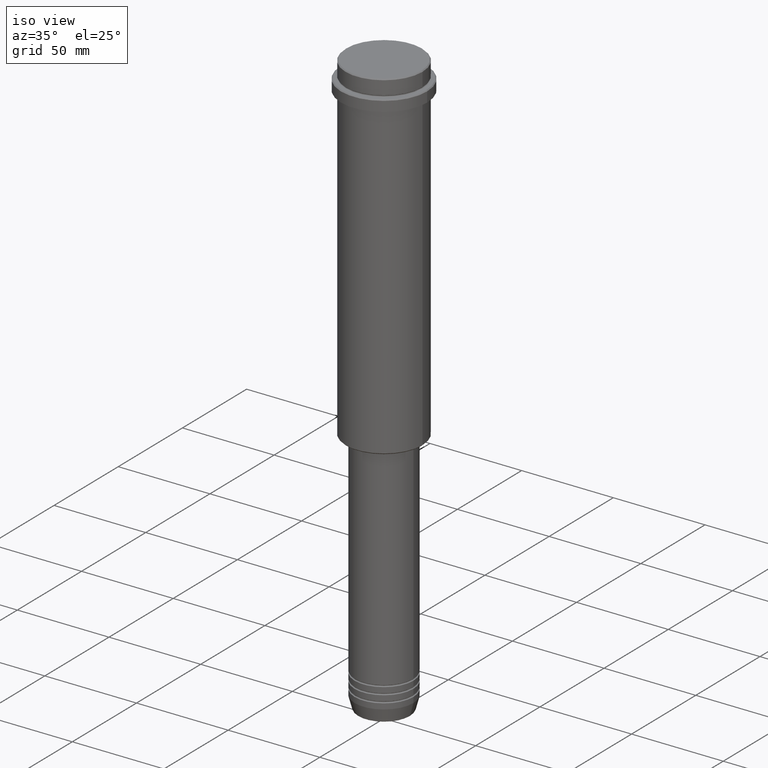
[diagram: clean part render]
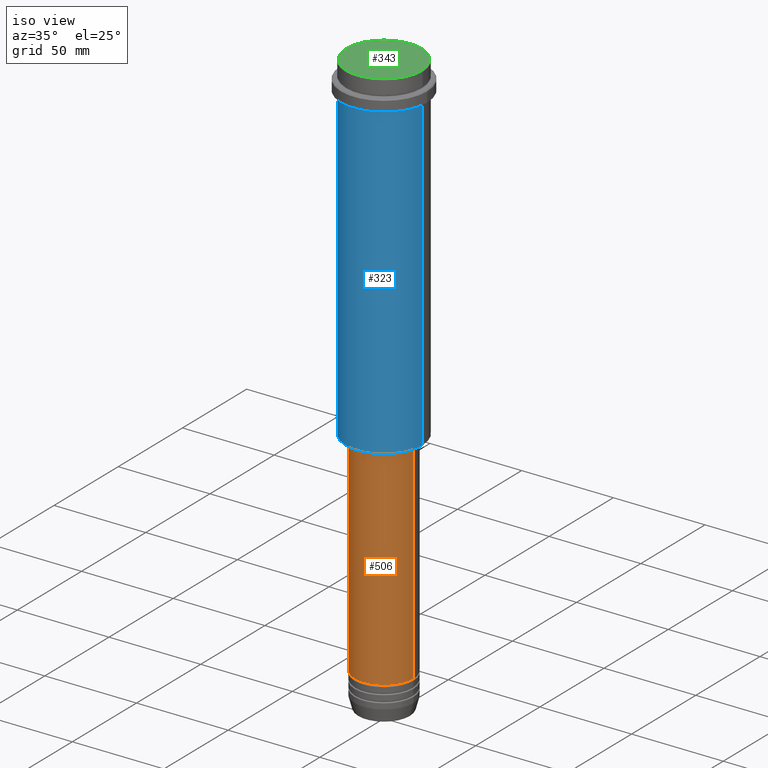
[diagram: same view with three faces highlighted in distinct colors, each labeled with its STEP entity id]
A machine part, iso view with three faces highlighted in distinct colors.
Their STEP definitions:

[orange] entity #506 — the highlighted cylindrical surface (edge-blend (fillet) strip) has radius 16 mm, axis along (-0, -0, 1).
#46 = DIRECTION ( 'NONE',  ( -0.000000000000000000, -0.000000000000000000, 1.000000000000000000 ) ) ;
#48 = ORIENTED_EDGE ( 'NONE', *, *, #816, .T. ) ;
#97 = CARTESIAN_POINT ( 'NONE',  ( -16.00000000000000355, 1.959434878635765526E-15, -185.9999999999999147 ) ) ;
#106 = CIRCLE ( 'NONE', #1089, 16.00000000000000355 ) ;
#188 = CARTESIAN_POINT ( 'NONE',  ( 0.000000000000000000, 0.000000000000000000, -185.9999999999999147 ) ) ;
#244 = CARTESIAN_POINT ( 'NONE',  ( 0.000000000000000000, 0.000000000000000000, 0.000000000000000000 ) ) ;
#271 = LINE ( 'NONE', #809, #704 ) ;
#284 = CARTESIAN_POINT ( 'NONE',  ( 16.00000000000000000, 0.000000000000000000, -300.9999999999998863 ) ) ;
#298 = EDGE_LOOP ( 'NONE', ( #736, #996, #48, #1081 ) ) ;
#336 = CARTESIAN_POINT ( 'NONE',  ( 16.00000000000000355, 0.000000000000000000, -185.9999999999999147 ) ) ;
#351 = CYLINDRICAL_SURFACE ( 'NONE', #726, 16.00000000000000000 ) ;
#370 = VECTOR ( 'NONE', #1317, 1000.000000000000000 ) ;
#385 = EDGE_CURVE ( 'NONE', #820, #1258, #408, .T. ) ;
#401 = EDGE_CURVE ( 'NONE', #1283, #868, #106, .T. ) ;
#408 = CIRCLE ( 'NONE', #1183, 16.00000000000000000 ) ;
#424 = CARTESIAN_POINT ( 'NONE',  ( 16.00000000000000000, 0.000000000000000000, 0.000000000000000000 ) ) ;
#446 = FACE_OUTER_BOUND ( 'NONE', #298, .T. ) ;
#506 = ADVANCED_FACE ( 'NONE', ( #446 ), #351, .T. ) ;
#538 = DIRECTION ( 'NONE',  ( -0.000000000000000000, -0.000000000000000000, 1.000000000000000000 ) ) ;
#564 = EDGE_CURVE ( 'NONE', #820, #1283, #271, .T. ) ;
#664 = LINE ( 'NONE', #424, #370 ) ;
#671 = DIRECTION ( 'NONE',  ( 1.000000000000000000, 0.000000000000000000, 0.000000000000000000 ) ) ;
#704 = VECTOR ( 'NONE', #46, 1000.000000000000000 ) ;
#720 = CARTESIAN_POINT ( 'NONE',  ( 0.000000000000000000, 0.000000000000000000, -300.9999999999998863 ) ) ;
#726 = AXIS2_PLACEMENT_3D ( 'NONE', #244, #1209, #671 ) ;
#736 = ORIENTED_EDGE ( 'NONE', *, *, #564, .F. ) ;
#779 = CARTESIAN_POINT ( 'NONE',  ( -16.00000000000000000, 1.959434878635765131E-15, -300.9999999999998863 ) ) ;
#809 = CARTESIAN_POINT ( 'NONE',  ( -16.00000000000000000, 1.959434878635765131E-15, 0.000000000000000000 ) ) ;
#816 = EDGE_CURVE ( 'NONE', #1258, #868, #664, .T. ) ;
#820 = VERTEX_POINT ( 'NONE', #779 ) ;
#868 = VERTEX_POINT ( 'NONE', #336 ) ;
#996 = ORIENTED_EDGE ( 'NONE', *, *, #385, .T. ) ;
#1081 = ORIENTED_EDGE ( 'NONE', *, *, #401, .F. ) ;
#1083 = DIRECTION ( 'NONE',  ( 1.000000000000000000, 0.000000000000000000, 0.000000000000000000 ) ) ;
#1089 = AXIS2_PLACEMENT_3D ( 'NONE', #188, #538, #1083 ) ;
#1160 = DIRECTION ( 'NONE',  ( -0.000000000000000000, -0.000000000000000000, 1.000000000000000000 ) ) ;
#1166 = DIRECTION ( 'NONE',  ( 1.000000000000000000, 0.000000000000000000, 0.000000000000000000 ) ) ;
#1183 = AXIS2_PLACEMENT_3D ( 'NONE', #720, #1160, #1166 ) ;
#1209 = DIRECTION ( 'NONE',  ( -0.000000000000000000, -0.000000000000000000, 1.000000000000000000 ) ) ;
#1258 = VERTEX_POINT ( 'NONE', #284 ) ;
#1283 = VERTEX_POINT ( 'NONE', #97 ) ;
#1317 = DIRECTION ( 'NONE',  ( -0.000000000000000000, -0.000000000000000000, 1.000000000000000000 ) ) ;

[blue] entity #323 — the highlighted cylindrical surface (partial cylindrical patch) has radius 21 mm, axis along (-0, -0, 1).
#36 = DIRECTION ( 'NONE',  ( 1.000000000000000000, 0.000000000000000000, 0.000000000000000000 ) ) ;
#44 = ORIENTED_EDGE ( 'NONE', *, *, #1077, .F. ) ;
#83 = CYLINDRICAL_SURFACE ( 'NONE', #1026, 20.99999999999999645 ) ;
#110 = VECTOR ( 'NONE', #213, 1000.000000000000000 ) ;
#111 = ORIENTED_EDGE ( 'NONE', *, *, #171, .F. ) ;
#161 = ORIENTED_EDGE ( 'NONE', *, *, #1271, .T. ) ;
#171 = EDGE_CURVE ( 'NONE', #230, #948, #559, .T. ) ;
#213 = DIRECTION ( 'NONE',  ( -0.000000000000000000, -0.000000000000000000, 1.000000000000000000 ) ) ;
#230 = VERTEX_POINT ( 'NONE', #1356 ) ;
#310 = DIRECTION ( 'NONE',  ( -0.000000000000000000, -0.000000000000000000, 1.000000000000000000 ) ) ;
#323 = ADVANCED_FACE ( 'NONE', ( #1071 ), #83, .T. ) ;
#364 = DIRECTION ( 'NONE',  ( -0.000000000000000000, -0.000000000000000000, 1.000000000000000000 ) ) ;
#433 = VECTOR ( 'NONE', #1342, 1000.000000000000000 ) ;
#559 = CIRCLE ( 'NONE', #1115, 20.99999999999999645 ) ;
#590 = VERTEX_POINT ( 'NONE', #679 ) ;
#641 = LINE ( 'NONE', #861, #110 ) ;
#679 = CARTESIAN_POINT ( 'NONE',  ( -20.99999999999999645, 2.571758278209441267E-15, -184.5000000000000284 ) ) ;
#861 = CARTESIAN_POINT ( 'NONE',  ( 20.99999999999999645, 0.000000000000000000, 0.000000000000000000 ) ) ;
#863 = CIRCLE ( 'NONE', #1207, 20.99999999999999645 ) ;
#873 = DIRECTION ( 'NONE',  ( -0.000000000000000000, -0.000000000000000000, 1.000000000000000000 ) ) ;
#902 = CARTESIAN_POINT ( 'NONE',  ( -20.99999999999999645, 2.571758278209441267E-15, 0.000000000000000000 ) ) ;
#932 = CARTESIAN_POINT ( 'NONE',  ( 0.000000000000000000, 0.000000000000000000, -184.5000000000000284 ) ) ;
#948 = VERTEX_POINT ( 'NONE', #1027 ) ;
#954 = DIRECTION ( 'NONE',  ( 1.000000000000000000, 0.000000000000000000, 0.000000000000000000 ) ) ;
#1026 = AXIS2_PLACEMENT_3D ( 'NONE', #1286, #310, #954 ) ;
#1027 = CARTESIAN_POINT ( 'NONE',  ( 20.99999999999999645, 0.000000000000000000, -16.00000000000000355 ) ) ;
#1036 = LINE ( 'NONE', #902, #433 ) ;
#1039 = VERTEX_POINT ( 'NONE', #1360 ) ;
#1071 = FACE_OUTER_BOUND ( 'NONE', #1138, .T. ) ;
#1077 = EDGE_CURVE ( 'NONE', #590, #230, #1036, .T. ) ;
#1079 = EDGE_CURVE ( 'NONE', #590, #1039, #863, .T. ) ;
#1110 = ORIENTED_EDGE ( 'NONE', *, *, #1079, .T. ) ;
#1115 = AXIS2_PLACEMENT_3D ( 'NONE', #1308, #873, #36 ) ;
#1138 = EDGE_LOOP ( 'NONE', ( #44, #1110, #161, #111 ) ) ;
#1207 = AXIS2_PLACEMENT_3D ( 'NONE', #932, #364, #1230 ) ;
#1230 = DIRECTION ( 'NONE',  ( -1.000000000000000000, 0.000000000000000000, 0.000000000000000000 ) ) ;
#1271 = EDGE_CURVE ( 'NONE', #1039, #948, #641, .T. ) ;
#1286 = CARTESIAN_POINT ( 'NONE',  ( 0.000000000000000000, 0.000000000000000000, 0.000000000000000000 ) ) ;
#1308 = CARTESIAN_POINT ( 'NONE',  ( 0.000000000000000000, 0.000000000000000000, -16.00000000000000355 ) ) ;
#1342 = DIRECTION ( 'NONE',  ( -0.000000000000000000, -0.000000000000000000, 1.000000000000000000 ) ) ;
#1356 = CARTESIAN_POINT ( 'NONE',  ( -20.99999999999999645, 2.571758278209441267E-15, -16.00000000000000355 ) ) ;
#1360 = CARTESIAN_POINT ( 'NONE',  ( 20.99999999999999645, 0.000000000000000000, -184.5000000000000284 ) ) ;

[green] entity #343 — the highlighted planar face has unit normal (0, -0, 1).
#222 = CARTESIAN_POINT ( 'NONE',  ( -20.50000000000004619, 0.000000000000000000, 0.000000000000000000 ) ) ;
#343 = ADVANCED_FACE ( 'NONE', ( #1383 ), #414, .T. ) ;
#368 = AXIS2_PLACEMENT_3D ( 'NONE', #1273, #1184, #407 ) ;
#407 = DIRECTION ( 'NONE',  ( 1.000000000000000000, 0.000000000000000000, 0.000000000000000000 ) ) ;
#409 = AXIS2_PLACEMENT_3D ( 'NONE', #594, #579, #1344 ) ;
#412 = AXIS2_PLACEMENT_3D ( 'NONE', #1095, #536, #1293 ) ;
#414 = PLANE ( 'NONE',  #368 ) ;
#501 = ORIENTED_EDGE ( 'NONE', *, *, #1269, .T. ) ;
#536 = DIRECTION ( 'NONE',  ( -0.000000000000000000, -0.000000000000000000, 1.000000000000000000 ) ) ;
#579 = DIRECTION ( 'NONE',  ( -0.000000000000000000, -0.000000000000000000, 1.000000000000000000 ) ) ;
#594 = CARTESIAN_POINT ( 'NONE',  ( 0.000000000000000000, 0.000000000000000000, 0.000000000000000000 ) ) ;
#638 = EDGE_CURVE ( 'NONE', #852, #883, #1091, .T. ) ;
#660 = CIRCLE ( 'NONE', #412, 20.50000000000004619 ) ;
#834 = EDGE_LOOP ( 'NONE', ( #501, #1165 ) ) ;
#852 = VERTEX_POINT ( 'NONE', #871 ) ;
#871 = CARTESIAN_POINT ( 'NONE',  ( 20.50000000000004619, 2.541142108230760635E-15, 0.000000000000000000 ) ) ;
#883 = VERTEX_POINT ( 'NONE', #222 ) ;
#1091 = CIRCLE ( 'NONE', #409, 20.50000000000004619 ) ;
#1095 = CARTESIAN_POINT ( 'NONE',  ( 0.000000000000000000, 0.000000000000000000, 0.000000000000000000 ) ) ;
#1165 = ORIENTED_EDGE ( 'NONE', *, *, #638, .T. ) ;
#1184 = DIRECTION ( 'NONE',  ( 0.000000000000000000, -0.000000000000000000, 1.000000000000000000 ) ) ;
#1269 = EDGE_CURVE ( 'NONE', #883, #852, #660, .T. ) ;
#1273 = CARTESIAN_POINT ( 'NONE',  ( 0.000000000000000000, 0.000000000000000000, 0.000000000000000000 ) ) ;
#1293 = DIRECTION ( 'NONE',  ( 1.000000000000000000, 0.000000000000000000, 0.000000000000000000 ) ) ;
#1344 = DIRECTION ( 'NONE',  ( 1.000000000000000000, 0.000000000000000000, 0.000000000000000000 ) ) ;
#1383 = FACE_OUTER_BOUND ( 'NONE', #834, .T. ) ;